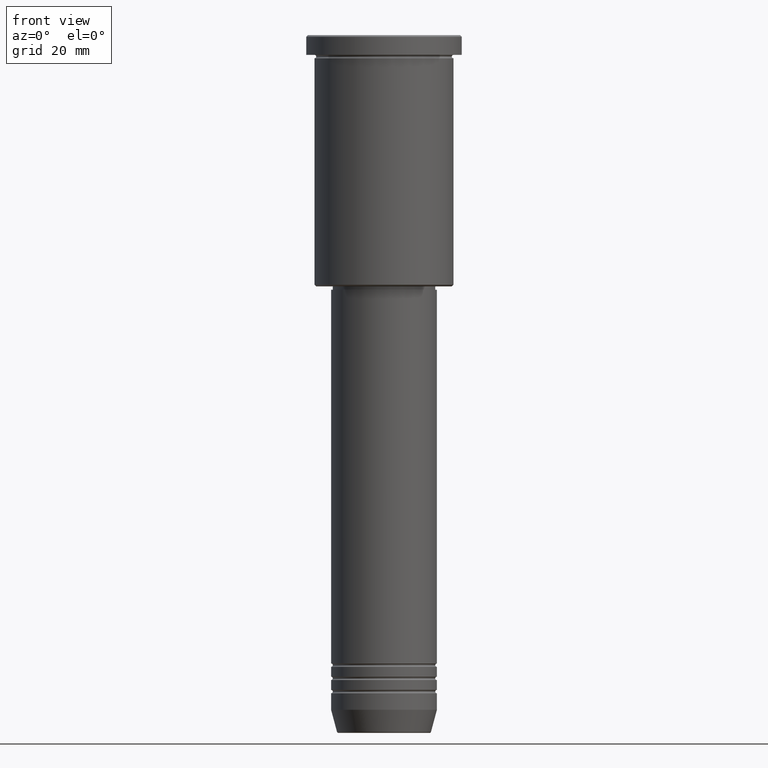
[diagram: clean part render]
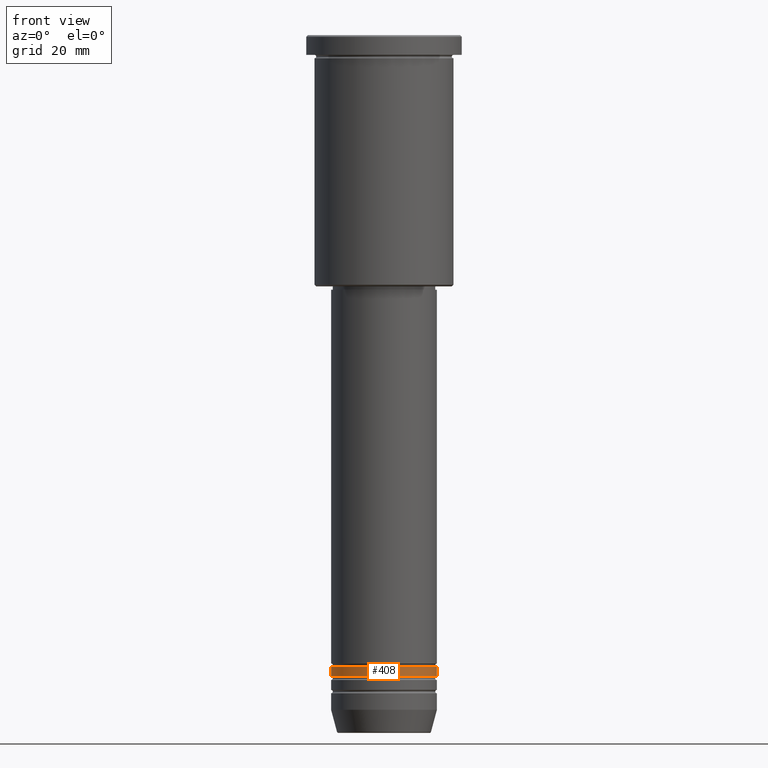
[diagram: same view with one face highlighted and labeled with its STEP entity id]
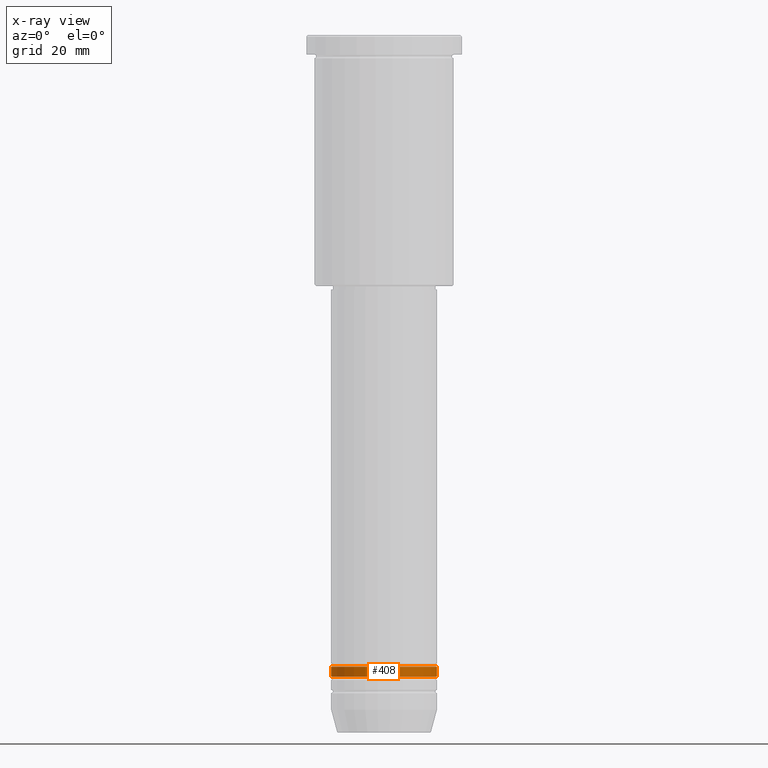
[diagram: x-ray of the same camera — body ghosted, the highlighted face saturated]
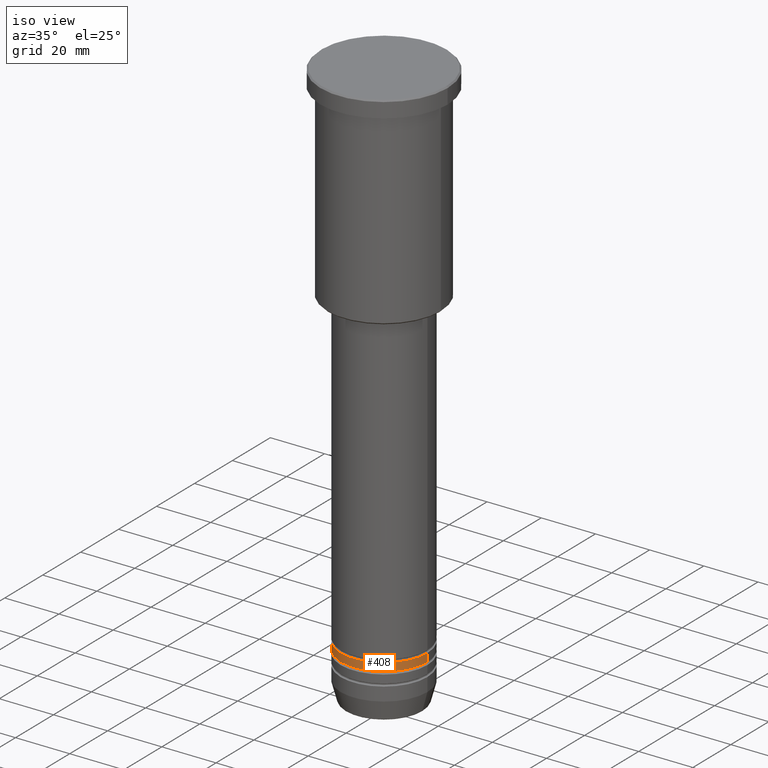
[diagram: same view with one face highlighted and labeled with its STEP entity id]
A machine part, front view. The second image highlights one B-rep face of the part: STEP entity #408.
The next image is the same camera in x-ray: the body ghosted, the highlighted face saturated — about 0% of this face is hidden behind the body in this view.
A second angle (iso view) of the same face is appended — the face is thin or edge-on in the first view.
In plain terms, the highlighted cylindrical surface (partial cylindrical patch) has radius 16 mm, axis along (-0, -0, 1).
Its self-contained STEP definition (entity closure, byte-faithful):
#2 = FACE_OUTER_BOUND ( 'NONE', #156, .T. ) ;
#5 = CIRCLE ( 'NONE', #239, 16.00000000000000355 ) ;
#10 = CARTESIAN_POINT ( 'NONE',  ( 0.000000000000000000, 0.000000000000000000, 0.000000000000000000 ) ) ;
#27 = CARTESIAN_POINT ( 'NONE',  ( 0.000000000000000000, 0.000000000000000000, -193.9999999999999432 ) ) ;
#39 = EDGE_CURVE ( 'NONE', #938, #838, #515, .T. ) ;
#43 = DIRECTION ( 'NONE',  ( -0.000000000000000000, -0.000000000000000000, 1.000000000000000000 ) ) ;
#68 = AXIS2_PLACEMENT_3D ( 'NONE', #610, #686, #979 ) ;
#96 = ORIENTED_EDGE ( 'NONE', *, *, #39, .T. ) ;
#156 = EDGE_LOOP ( 'NONE', ( #726, #1070, #96, #393 ) ) ;
#209 = CYLINDRICAL_SURFACE ( 'NONE', #403, 16.00000000000000000 ) ;
#222 = DIRECTION ( 'NONE',  ( -0.000000000000000000, -0.000000000000000000, 1.000000000000000000 ) ) ;
#239 = AXIS2_PLACEMENT_3D ( 'NONE', #27, #763, #741 ) ;
#250 = VECTOR ( 'NONE', #222, 1000.000000000000000 ) ;
#262 = CARTESIAN_POINT ( 'NONE',  ( 16.00000000000000000, 0.000000000000000000, -190.9999999999999147 ) ) ;
#294 = DIRECTION ( 'NONE',  ( 1.000000000000000000, 0.000000000000000000, 0.000000000000000000 ) ) ;
#390 = CARTESIAN_POINT ( 'NONE',  ( -16.00000000000000000, 1.959434878635765131E-15, 0.000000000000000000 ) ) ;
#393 = ORIENTED_EDGE ( 'NONE', *, *, #1158, .F. ) ;
#403 = AXIS2_PLACEMENT_3D ( 'NONE', #10, #724, #294 ) ;
#408 = ADVANCED_FACE ( 'NONE', ( #2 ), #209, .T. ) ;
#484 = VECTOR ( 'NONE', #43, 1000.000000000000000 ) ;
#511 = VERTEX_POINT ( 'NONE', #678 ) ;
#515 = LINE ( 'NONE', #768, #250 ) ;
#553 = VERTEX_POINT ( 'NONE', #773 ) ;
#583 = CIRCLE ( 'NONE', #68, 16.00000000000000000 ) ;
#610 = CARTESIAN_POINT ( 'NONE',  ( 0.000000000000000000, 0.000000000000000000, -190.9999999999999147 ) ) ;
#678 = CARTESIAN_POINT ( 'NONE',  ( -16.00000000000000355, 1.959434878635765526E-15, -193.9999999999999432 ) ) ;
#686 = DIRECTION ( 'NONE',  ( -0.000000000000000000, -0.000000000000000000, 1.000000000000000000 ) ) ;
#723 = EDGE_CURVE ( 'NONE', #511, #553, #861, .T. ) ;
#724 = DIRECTION ( 'NONE',  ( -0.000000000000000000, -0.000000000000000000, 1.000000000000000000 ) ) ;
#726 = ORIENTED_EDGE ( 'NONE', *, *, #723, .F. ) ;
#741 = DIRECTION ( 'NONE',  ( 1.000000000000000000, 0.000000000000000000, 0.000000000000000000 ) ) ;
#763 = DIRECTION ( 'NONE',  ( -0.000000000000000000, -0.000000000000000000, 1.000000000000000000 ) ) ;
#768 = CARTESIAN_POINT ( 'NONE',  ( 16.00000000000000000, 0.000000000000000000, 0.000000000000000000 ) ) ;
#773 = CARTESIAN_POINT ( 'NONE',  ( -16.00000000000000000, 1.959434878635765131E-15, -190.9999999999999147 ) ) ;
#838 = VERTEX_POINT ( 'NONE', #262 ) ;
#861 = LINE ( 'NONE', #390, #484 ) ;
#938 = VERTEX_POINT ( 'NONE', #994 ) ;
#979 = DIRECTION ( 'NONE',  ( 1.000000000000000000, 0.000000000000000000, 0.000000000000000000 ) ) ;
#994 = CARTESIAN_POINT ( 'NONE',  ( 16.00000000000000355, 0.000000000000000000, -193.9999999999999432 ) ) ;
#1011 = EDGE_CURVE ( 'NONE', #511, #938, #5, .T. ) ;
#1070 = ORIENTED_EDGE ( 'NONE', *, *, #1011, .T. ) ;
#1158 = EDGE_CURVE ( 'NONE', #553, #838, #583, .T. ) ;